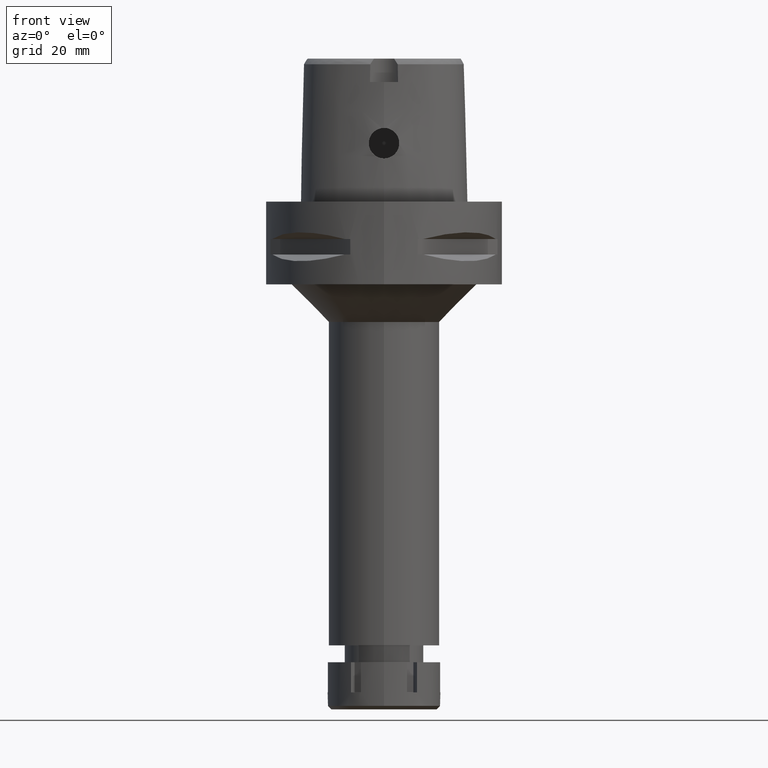
[diagram: clean part render]
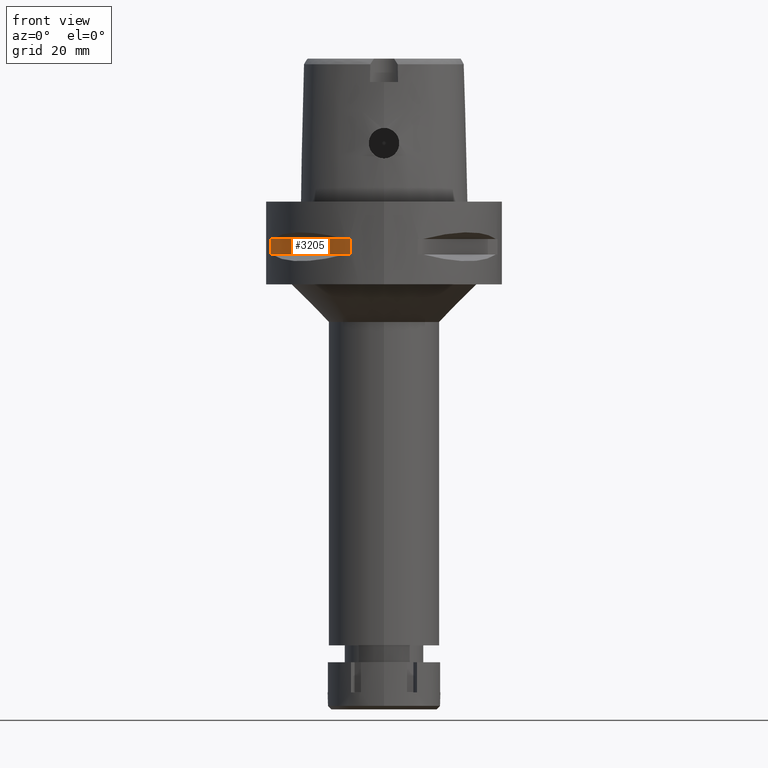
[diagram: same view with one face highlighted and labeled with its STEP entity id]
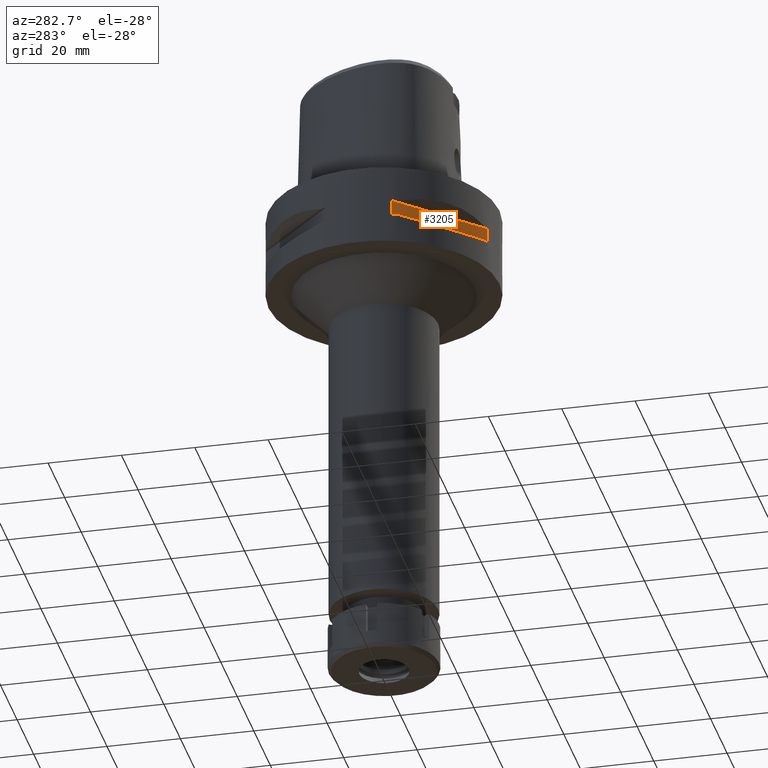
[diagram: same view with one face highlighted and labeled with its STEP entity id]
A machine part, front view. The second image highlights one B-rep face of the part: STEP entity #3205.
A second angle (auxiliary view) of the same face is appended — the face is thin or edge-on in the first view.
In plain terms, the highlighted planar face has unit normal (0.7071, 0.7071, 0).
Its self-contained STEP definition (entity closure, byte-faithful):
#164 = DIRECTION ( 'NONE',  ( 0.0000000000000000000, 0.0000000000000000000, -1.000000000000000000 ) ) ;
#212 = ORIENTED_EDGE ( 'NONE', *, *, #4507, .T. ) ;
#366 = CARTESIAN_POINT ( 'NONE',  ( -30.19251670572000279, -8.981198972017999438, -14.05000000000000071 ) ) ;
#368 = LINE ( 'NONE', #3308, #1320 ) ;
#534 = LINE ( 'NONE', #3073, #1139 ) ;
#899 = VECTOR ( 'NONE', #2808, 1000.000000000000114 ) ;
#902 = EDGE_CURVE ( 'NONE', #4138, #3649, #2046, .T. ) ;
#1006 = ORIENTED_EDGE ( 'NONE', *, *, #902, .F. ) ;
#1064 = PLANE ( 'NONE',  #3031 ) ;
#1121 = DIRECTION ( 'NONE',  ( 0.7071067811865475727, 0.7071067811865475727, 0.0000000000000000000 ) ) ;
#1139 = VECTOR ( 'NONE', #3974, 1000.000000000000000 ) ;
#1320 = VECTOR ( 'NONE', #2011, 1000.000000000000000 ) ;
#1664 = EDGE_CURVE ( 'NONE', #5250, #3204, #2052, .T. ) ;
#2003 = ORIENTED_EDGE ( 'NONE', *, *, #1664, .T. ) ;
#2011 = DIRECTION ( 'NONE',  ( 0.0000000000000000000, 0.0000000000000000000, 1.000000000000000000 ) ) ;
#2046 = LINE ( 'NONE', #5433, #899 ) ;
#2052 = LINE ( 'NONE', #3262, #4319 ) ;
#2361 = CARTESIAN_POINT ( 'NONE',  ( -8.981198972017999438, -30.19251670572000279, -9.950000000000001066 ) ) ;
#2613 = CARTESIAN_POINT ( 'NONE',  ( -30.19251670572000279, -8.981198972019999616, -9.950000000000001066 ) ) ;
#2808 = DIRECTION ( 'NONE',  ( 0.7071067811865474617, -0.7071067811865474617, 0.0000000000000000000 ) ) ;
#3031 = AXIS2_PLACEMENT_3D ( 'NONE', #3655, #1121, #164 ) ;
#3073 = CARTESIAN_POINT ( 'NONE',  ( -30.19251670572000279, -8.981198972017999438, -9.950000000000001066 ) ) ;
#3204 = VERTEX_POINT ( 'NONE', #3719 ) ;
#3205 = ADVANCED_FACE ( 'NONE', ( #4963 ), #1064, .F. ) ;
#3262 = CARTESIAN_POINT ( 'NONE',  ( -30.19251670572000279, -8.981198972017999438, -14.05000000000000071 ) ) ;
#3308 = CARTESIAN_POINT ( 'NONE',  ( -8.981198972017999438, -30.19251670572000279, -14.05000000000000071 ) ) ;
#3649 = VERTEX_POINT ( 'NONE', #2361 ) ;
#3655 = CARTESIAN_POINT ( 'NONE',  ( -5.444722215136000187, -33.72899346260000186, -9.950000000000001066 ) ) ;
#3719 = CARTESIAN_POINT ( 'NONE',  ( -8.981198972019999616, -30.19251670572000279, -14.05000000000000071 ) ) ;
#3723 = ORIENTED_EDGE ( 'NONE', *, *, #4378, .T. ) ;
#3974 = DIRECTION ( 'NONE',  ( 0.0000000000000000000, 0.0000000000000000000, -1.000000000000000000 ) ) ;
#4138 = VERTEX_POINT ( 'NONE', #2613 ) ;
#4319 = VECTOR ( 'NONE', #5411, 1000.000000000000114 ) ;
#4378 = EDGE_CURVE ( 'NONE', #3204, #3649, #368, .T. ) ;
#4507 = EDGE_CURVE ( 'NONE', #4138, #5250, #534, .T. ) ;
#4509 = EDGE_LOOP ( 'NONE', ( #1006, #212, #2003, #3723 ) ) ;
#4963 = FACE_OUTER_BOUND ( 'NONE', #4509, .T. ) ;
#5250 = VERTEX_POINT ( 'NONE', #366 ) ;
#5411 = DIRECTION ( 'NONE',  ( 0.7071067811865474617, -0.7071067811865474617, 0.0000000000000000000 ) ) ;
#5433 = CARTESIAN_POINT ( 'NONE',  ( -30.19251670572000279, -8.981198972017999438, -9.950000000000001066 ) ) ;